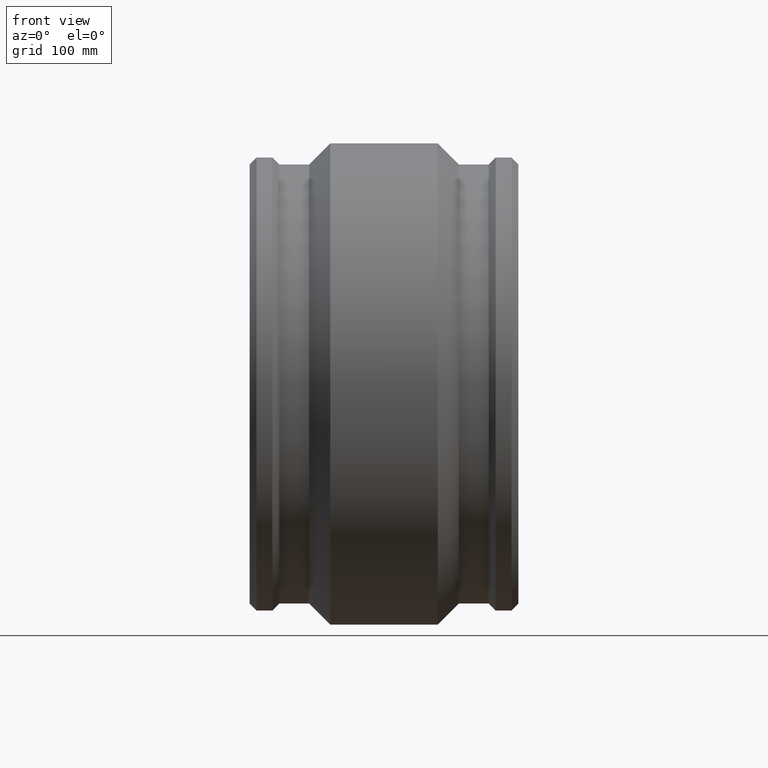
[diagram: clean part render]
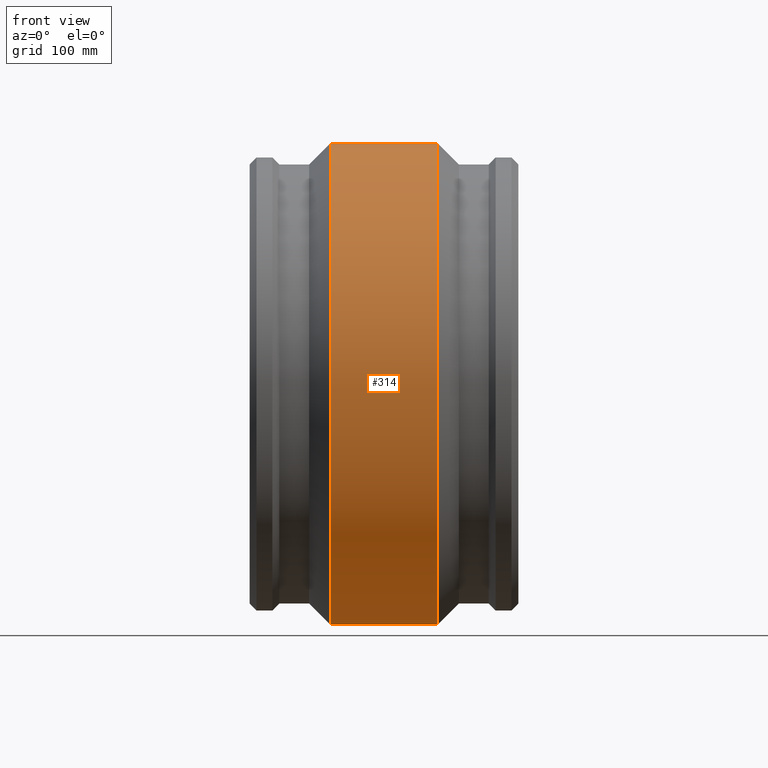
[diagram: same view with one face highlighted and labeled with its STEP entity id]
A machine part, front view. The second image highlights one B-rep face of the part: STEP entity #314.
In plain terms, the highlighted cylindrical surface (bore or boss wall) has radius 337 mm, axis along (1, 0, 0).
Its self-contained STEP definition (entity closure, byte-faithful):
#42=FACE_BOUND('',#130,.T.);
#60=CYLINDRICAL_SURFACE('',#365,337.);
#84=FACE_OUTER_BOUND('',#129,.T.);
#129=EDGE_LOOP('',(#271));
#130=EDGE_LOOP('',(#272));
#163=CIRCLE('',#364,337.);
#164=CIRCLE('',#366,337.);
#189=VERTEX_POINT('',#623);
#190=VERTEX_POINT('',#626);
#219=EDGE_CURVE('',#189,#189,#163,.T.);
#220=EDGE_CURVE('',#190,#190,#164,.T.);
#271=ORIENTED_EDGE('',*,*,#219,.T.);
#272=ORIENTED_EDGE('',*,*,#220,.F.);
#314=ADVANCED_FACE('',(#84,#42),#60,.T.);
#364=AXIS2_PLACEMENT_3D('',#624,#461,#462);
#365=AXIS2_PLACEMENT_3D('',#625,#463,#464);
#366=AXIS2_PLACEMENT_3D('',#627,#465,#466);
#461=DIRECTION('center_axis',(1.,1.83697019872103E-16,0.));
#462=DIRECTION('ref_axis',(0.,0.,-1.));
#463=DIRECTION('center_axis',(1.,1.83697019872103E-16,0.));
#464=DIRECTION('ref_axis',(-1.90323947078598E-16,1.,0.));
#465=DIRECTION('center_axis',(1.,1.83697019872103E-16,0.));
#466=DIRECTION('ref_axis',(0.,0.,-1.));
#623=CARTESIAN_POINT('',(-75.2,337.,0.));
#624=CARTESIAN_POINT('Origin',(-75.2,2.07210238415732E-14,0.));
#625=CARTESIAN_POINT('Origin',(1.77635683940025E-14,3.45350397359554E-14,
0.));
#626=CARTESIAN_POINT('',(75.2,337.,0.));
#627=CARTESIAN_POINT('Origin',(75.2,4.83490556303375E-14,0.));